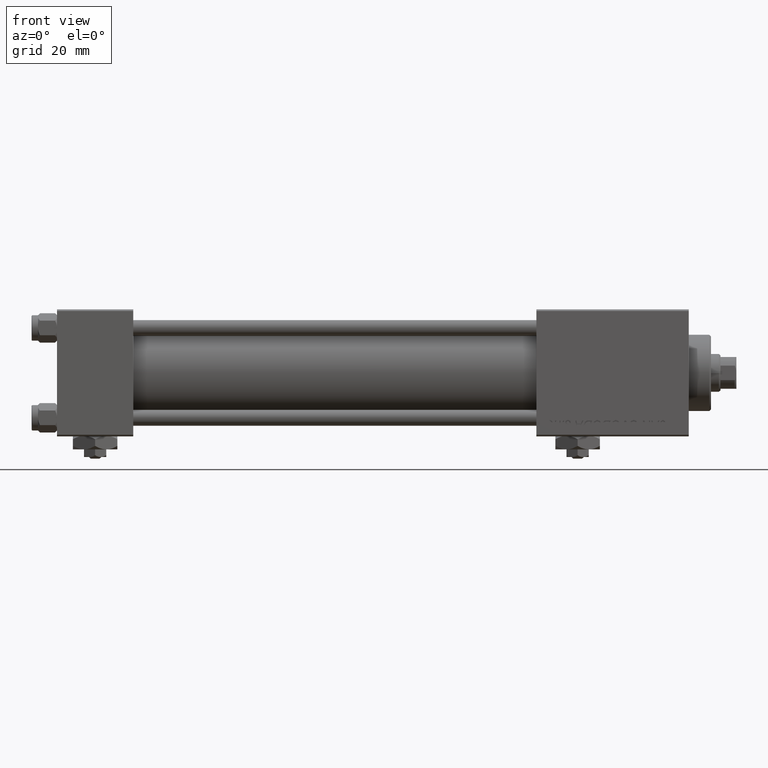
[diagram: clean part render]
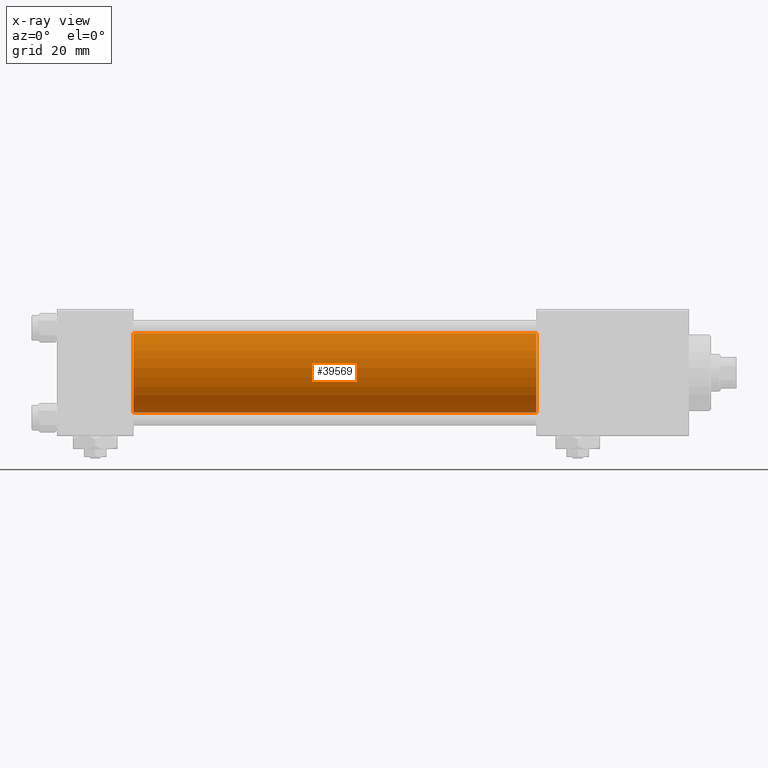
[diagram: x-ray — body ghosted, one internal face saturated and labeled with its STEP entity id]
A machine part, front view, then the same camera in x-ray: the body is ghosted and one INTERNAL B-rep face — a face not visible from any outside direction — is saturated and labeled: STEP entity #39569.
In plain terms, the highlighted cylindrical surface (partial cylindrical patch) has radius 12.5 mm, axis along (-1, -0, -0).
Its self-contained STEP definition (entity closure, byte-faithful):
#1591 = EDGE_CURVE ( 'NONE', #51953, #29794, #25425, .T. ) ;
#2568 = CARTESIAN_POINT ( 'NONE',  ( 151.0000000000000000, -2.602085213965210642E-15, 0.000000000000000000 ) ) ;
#7324 = DIRECTION ( 'NONE',  ( -1.000000000000000000, -0.000000000000000000, -0.000000000000000000 ) ) ;
#8992 = EDGE_CURVE ( 'NONE', #51953, #19348, #12898, .T. ) ;
#10106 = AXIS2_PLACEMENT_3D ( 'NONE', #31862, #39499, #48466 ) ;
#12898 = LINE ( 'NONE', #45318, #37461 ) ;
#18146 = CARTESIAN_POINT ( 'NONE',  ( 151.0000000000000000, -1.071276715031019515E-15, -12.49999999999999645 ) ) ;
#18431 = CARTESIAN_POINT ( 'NONE',  ( 151.0000000000000000, -2.602085213965210642E-15, 12.49999999999999645 ) ) ;
#18962 = ORIENTED_EDGE ( 'NONE', *, *, #29425, .T. ) ;
#19176 = FACE_OUTER_BOUND ( 'NONE', #31631, .T. ) ;
#19348 = VERTEX_POINT ( 'NONE', #27357 ) ;
#19430 = CYLINDRICAL_SURFACE ( 'NONE', #31125, 12.49999999999999645 ) ;
#21627 = VECTOR ( 'NONE', #38626, 1000.000000000000000 ) ;
#22544 = CARTESIAN_POINT ( 'NONE',  ( 151.0000000000000000, -1.071276715031019515E-15, -12.49999999999999645 ) ) ;
#23706 = AXIS2_PLACEMENT_3D ( 'NONE', #2568, #46598, #37664 ) ;
#24722 = EDGE_CURVE ( 'NONE', #19348, #43835, #32840, .T. ) ;
#25425 = CIRCLE ( 'NONE', #23706, 12.49999999999999645 ) ;
#26842 = CARTESIAN_POINT ( 'NONE',  ( 151.0000000000000000, -2.602085213965210642E-15, 0.000000000000000000 ) ) ;
#27357 = CARTESIAN_POINT ( 'NONE',  ( 24.00000000000000000, -2.602085213965210642E-15, 12.49999999999999645 ) ) ;
#28148 = ORIENTED_EDGE ( 'NONE', *, *, #8992, .F. ) ;
#28975 = DIRECTION ( 'NONE',  ( -1.000000000000000000, -0.000000000000000000, -0.000000000000000000 ) ) ;
#29425 = EDGE_CURVE ( 'NONE', #29794, #43835, #48557, .T. ) ;
#29794 = VERTEX_POINT ( 'NONE', #18146 ) ;
#31125 = AXIS2_PLACEMENT_3D ( 'NONE', #26842, #7324, #35021 ) ;
#31631 = EDGE_LOOP ( 'NONE', ( #44836, #18962, #49225, #28148 ) ) ;
#31862 = CARTESIAN_POINT ( 'NONE',  ( 24.00000000000000000, -2.602085213965210642E-15, 0.000000000000000000 ) ) ;
#32840 = CIRCLE ( 'NONE', #10106, 12.49999999999999645 ) ;
#35021 = DIRECTION ( 'NONE',  ( 0.000000000000000000, 0.000000000000000000, 1.000000000000000000 ) ) ;
#37461 = VECTOR ( 'NONE', #28975, 1000.000000000000000 ) ;
#37664 = DIRECTION ( 'NONE',  ( 0.000000000000000000, 0.000000000000000000, -1.000000000000000000 ) ) ;
#38626 = DIRECTION ( 'NONE',  ( -1.000000000000000000, -0.000000000000000000, -0.000000000000000000 ) ) ;
#39499 = DIRECTION ( 'NONE',  ( 1.000000000000000000, 0.000000000000000000, 0.000000000000000000 ) ) ;
#39569 = ADVANCED_FACE ( 'NONE', ( #19176 ), #19430, .F. ) ;
#43835 = VERTEX_POINT ( 'NONE', #51986 ) ;
#44836 = ORIENTED_EDGE ( 'NONE', *, *, #1591, .T. ) ;
#45318 = CARTESIAN_POINT ( 'NONE',  ( 151.0000000000000000, -2.602085213965210642E-15, 12.49999999999999645 ) ) ;
#46598 = DIRECTION ( 'NONE',  ( 1.000000000000000000, 0.000000000000000000, 0.000000000000000000 ) ) ;
#48466 = DIRECTION ( 'NONE',  ( 0.000000000000000000, 0.000000000000000000, -1.000000000000000000 ) ) ;
#48557 = LINE ( 'NONE', #22544, #21627 ) ;
#49225 = ORIENTED_EDGE ( 'NONE', *, *, #24722, .F. ) ;
#51953 = VERTEX_POINT ( 'NONE', #18431 ) ;
#51986 = CARTESIAN_POINT ( 'NONE',  ( 24.00000000000000000, -1.071276715031019515E-15, -12.49999999999999645 ) ) ;